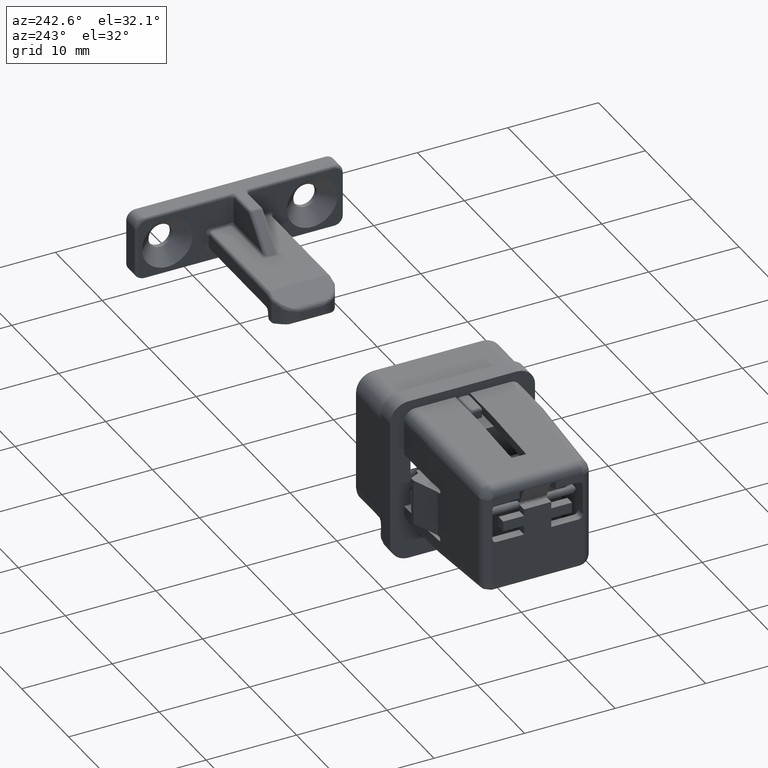
[diagram: clean part render]
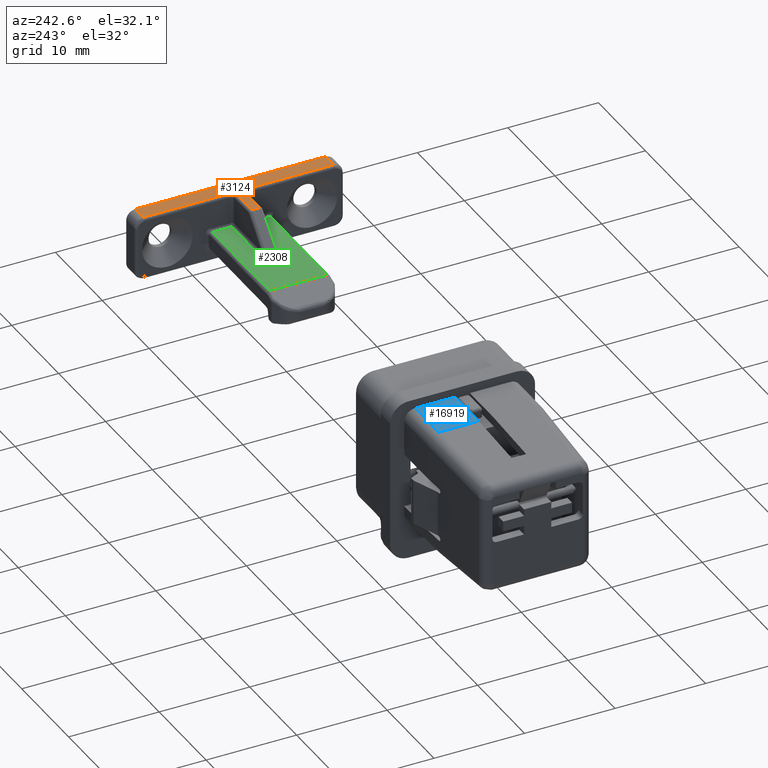
[diagram: same view with three faces highlighted in distinct colors, each labeled with its STEP entity id]
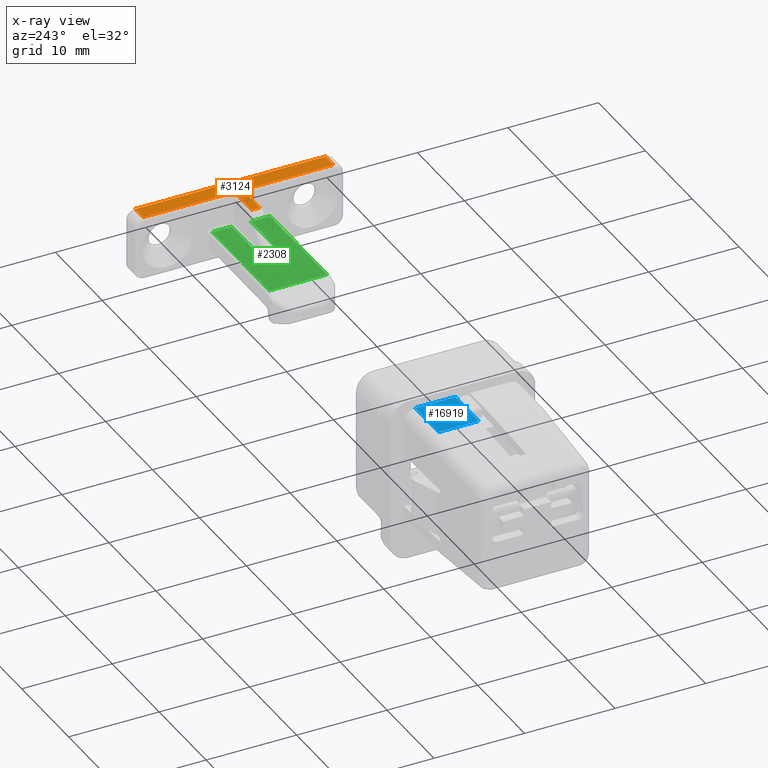
[diagram: x-ray of the same camera — body ghosted, the three highlighted faces saturated]
A machine part, auxiliary view with three faces highlighted in distinct colors.
The next image is the same camera in x-ray (body ghosted, the three faces saturated) — at least one of them is partly hidden behind the body in this view.
Their STEP definitions:

[orange] entity #3124 — the highlighted face is a freeform B-spline surface patch.
#699=CARTESIAN_POINT('',(40.299999999999969,-10.500000000000000,3.500000000000000));
#700=VERTEX_POINT('',#699);
#701=CARTESIAN_POINT('',(42.0,-10.500000000000000,3.500000000000000));
#702=VERTEX_POINT('',#701);
#703=CARTESIAN_POINT('',(40.299999999999969,-10.500000000000000,3.500000000000000));
#704=CARTESIAN_POINT('',(42.0,-10.500000000000000,3.500000000000000));
#705=QUASI_UNIFORM_CURVE('',1,(#703,#704),.UNSPECIFIED.,.F.,.U.);
#706=EDGE_CURVE('',#700,#702,#705,.T.);
#797=CARTESIAN_POINT('',(42.0,10.500000000000000,3.500000000000000));
#798=VERTEX_POINT('',#797);
#812=CARTESIAN_POINT('',(42.0,-10.500000000000000,3.500000000000000));
#813=CARTESIAN_POINT('',(42.0,10.500000000000000,3.500000000000000));
#814=QUASI_UNIFORM_CURVE('',1,(#812,#813),.UNSPECIFIED.,.F.,.U.);
#815=EDGE_CURVE('',#702,#798,#814,.T.);
#1270=CARTESIAN_POINT('',(39.700000000000003,-0.450000000000000,3.500000000000000));
#1271=VERTEX_POINT('',#1270);
#1272=CARTESIAN_POINT('',(40.299999999999997,-1.050000000000000,3.500000000000000));
#1273=VERTEX_POINT('',#1272);
#1274=CARTESIAN_POINT('',(39.700000000000003,-0.450000000000000,3.500000000000000));
#1275=CARTESIAN_POINT('',(40.299999999999997,-0.450000000000000,3.500000000000000));
#1276=CARTESIAN_POINT('',(40.299999999999997,-1.050000000000000,3.500000000000000));
#1284=(BOUNDED_CURVE()B_SPLINE_CURVE(2,(#1274,#1275,#1276),.UNSPECIFIED.,.F.,.U.)CURVE()GEOMETRIC_REPRESENTATION_ITEM()QUASI_UNIFORM_CURVE()RATIONAL_B_SPLINE_CURVE((1.0,0.707106781186547,1.0))REPRESENTATION_ITEM(''));
#1285=EDGE_CURVE('',#1271,#1273,#1284,.T.);
#1486=CARTESIAN_POINT('',(36.624264068711909,-0.449999999999951,3.499999999999945));
#1487=VERTEX_POINT('',#1486);
#1503=CARTESIAN_POINT('',(36.624264068711909,-0.449999999999951,3.499999999999945));
#1504=CARTESIAN_POINT('',(39.700000000000003,-0.450000000000000,3.500000000000000));
#1505=QUASI_UNIFORM_CURVE('',1,(#1503,#1504),.UNSPECIFIED.,.F.,.U.);
#1506=EDGE_CURVE('',#1487,#1271,#1505,.T.);
#1904=CARTESIAN_POINT('',(36.624264068711909,0.449999999999951,3.499999999999945));
#1905=VERTEX_POINT('',#1904);
#1992=CARTESIAN_POINT('',(39.700000000000003,0.450000000000000,3.500000000000000));
#1993=VERTEX_POINT('',#1992);
#2009=CARTESIAN_POINT('',(39.700000000000003,0.450000000000000,3.500000000000000));
#2010=CARTESIAN_POINT('',(36.624264068711909,0.449999999999951,3.499999999999945));
#2011=QUASI_UNIFORM_CURVE('',1,(#2009,#2010),.UNSPECIFIED.,.F.,.U.);
#2012=EDGE_CURVE('',#1993,#1905,#2011,.T.);
#2073=CARTESIAN_POINT('',(40.299999999999997,1.050000000000000,3.500000000000000));
#2074=VERTEX_POINT('',#2073);
#2075=CARTESIAN_POINT('',(40.299999999999997,1.050000000000000,3.500000000000000));
#2076=CARTESIAN_POINT('',(40.299999999999997,0.450000000000000,3.500000000000000));
#2077=CARTESIAN_POINT('',(39.700000000000003,0.450000000000000,3.500000000000000));
#2085=(BOUNDED_CURVE()B_SPLINE_CURVE(2,(#2075,#2076,#2077),.UNSPECIFIED.,.F.,.U.)CURVE()GEOMETRIC_REPRESENTATION_ITEM()QUASI_UNIFORM_CURVE()RATIONAL_B_SPLINE_CURVE((1.0,0.707106781186547,1.0))REPRESENTATION_ITEM(''));
#2086=EDGE_CURVE('',#2074,#1993,#2085,.T.);
#2440=CARTESIAN_POINT('',(36.624264068711909,0.449999999999951,3.499999999999945));
#2441=CARTESIAN_POINT('',(36.624264068711909,-0.449999999999951,3.499999999999945));
#2442=QUASI_UNIFORM_CURVE('',1,(#2440,#2441),.UNSPECIFIED.,.F.,.U.);
#2443=EDGE_CURVE('',#1905,#1487,#2442,.T.);
#2535=CARTESIAN_POINT('',(40.299999999999969,10.500000000000000,3.500000000000000));
#2536=VERTEX_POINT('',#2535);
#2655=CARTESIAN_POINT('',(40.299999999999997,-1.050000000000000,3.500000000000000));
#2656=CARTESIAN_POINT('',(40.299999999999969,-10.500000000000000,3.500000000000000));
#2657=QUASI_UNIFORM_CURVE('',1,(#2655,#2656),.UNSPECIFIED.,.F.,.U.);
#2658=EDGE_CURVE('',#1273,#700,#2657,.T.);
#3094=CARTESIAN_POINT('',(40.299999999999969,10.500000000000000,3.500000000000000));
#3095=CARTESIAN_POINT('',(42.0,10.500000000000000,3.500000000000000));
#3096=QUASI_UNIFORM_CURVE('',1,(#3094,#3095),.UNSPECIFIED.,.F.,.U.);
#3097=EDGE_CURVE('',#2536,#798,#3096,.T.);
#3103=CARTESIAN_POINT('',(42.268517999348617,-11.548949959297930,3.500000000000000));
#3104=CARTESIAN_POINT('',(36.355745925174823,-11.548949959297930,3.500000000000000));
#3105=CARTESIAN_POINT('',(42.268517999348617,11.548950522561819,3.500000000000000));
#3106=CARTESIAN_POINT('',(36.355745925174823,11.548950522561819,3.500000000000000));
#3107=B_SPLINE_SURFACE_WITH_KNOTS('',1,1,((#3103,#3105),(#3104,#3106)),.UNSPECIFIED.,.F.,.F.,.U.,(2,2),(2,2),(0.0,5.912772074173807),(0.0,23.097900481859750),.UNSPECIFIED.);
#3108=ORIENTED_EDGE('',*,*,#1506,.T.);
#3109=ORIENTED_EDGE('',*,*,#1285,.T.);
#3110=ORIENTED_EDGE('',*,*,#2658,.T.);
#3111=ORIENTED_EDGE('',*,*,#706,.T.);
#3112=ORIENTED_EDGE('',*,*,#815,.T.);
#3113=ORIENTED_EDGE('',*,*,#3097,.F.);
#3114=CARTESIAN_POINT('',(40.299999999999969,10.500000000000000,3.500000000000000));
#3115=CARTESIAN_POINT('',(40.299999999999997,1.050000000000000,3.500000000000000));
#3116=QUASI_UNIFORM_CURVE('',1,(#3114,#3115),.UNSPECIFIED.,.F.,.U.);
#3117=EDGE_CURVE('',#2536,#2074,#3116,.T.);
#3118=ORIENTED_EDGE('',*,*,#3117,.T.);
#3119=ORIENTED_EDGE('',*,*,#2086,.T.);
#3120=ORIENTED_EDGE('',*,*,#2012,.T.);
#3121=ORIENTED_EDGE('',*,*,#2443,.T.);
#3122=EDGE_LOOP('',(#3108,#3109,#3110,#3111,#3112,#3113,#3118,#3119,#3120,#3121));
#3123=FACE_OUTER_BOUND('',#3122,.T.);
#3124=ADVANCED_FACE('',(#3123),#3107,.F.);

[blue] entity #16919 — the highlighted face is a freeform B-spline surface patch.
#16212=CARTESIAN_POINT('',(-12.499976312170720,5.250000000000000,6.499999046325630));
#16213=VERTEX_POINT('',#16212);
#16229=CARTESIAN_POINT('',(-7.500000000000000,5.250000000000000,6.499999046325681));
#16230=VERTEX_POINT('',#16229);
#16231=CARTESIAN_POINT('',(-7.500000000000000,5.250000000000000,6.499999046325681));
#16232=CARTESIAN_POINT('',(-12.499976312170720,5.250000000000000,6.499999046325630));
#16233=QUASI_UNIFORM_CURVE('',1,(#16231,#16232),.UNSPECIFIED.,.F.,.U.);
#16234=EDGE_CURVE('',#16230,#16213,#16233,.T.);
#16795=CARTESIAN_POINT('',(-12.499976312170700,0.799999237060540,6.499999046325630));
#16796=VERTEX_POINT('',#16795);
#16802=CARTESIAN_POINT('',(-12.499976312170720,5.250000000000000,6.499999046325630));
#16803=CARTESIAN_POINT('',(-12.499976312170700,0.799999237060540,6.499999046325630));
#16804=QUASI_UNIFORM_CURVE('',1,(#16802,#16803),.UNSPECIFIED.,.F.,.U.);
#16805=EDGE_CURVE('',#16213,#16796,#16804,.T.);
#16898=CARTESIAN_POINT('',(-12.749725119272730,0.577721707576679,6.499999046325620));
#16899=CARTESIAN_POINT('',(-12.749725119272730,5.472277648842184,6.499999046325620));
#16900=CARTESIAN_POINT('',(-7.250251058788182,0.577721707576679,6.499999046325620));
#16901=CARTESIAN_POINT('',(-7.250251058788182,5.472277648842184,6.499999046325620));
#16902=B_SPLINE_SURFACE_WITH_KNOTS('',1,1,((#16898,#16900),(#16899,#16901)),.UNSPECIFIED.,.F.,.F.,.U.,(2,2),(2,2),(0.0,4.894555941265505),(0.0,5.499474060484543),.UNSPECIFIED.);
#16903=ORIENTED_EDGE('',*,*,#16805,.T.);
#16904=CARTESIAN_POINT('',(-7.500000000000000,0.799999237060540,6.499999046325590));
#16905=VERTEX_POINT('',#16904);
#16906=CARTESIAN_POINT('',(-7.500000000000000,0.799999237060540,6.499999046325590));
#16907=CARTESIAN_POINT('',(-12.499976312170700,0.799999237060540,6.499999046325630));
#16908=QUASI_UNIFORM_CURVE('',1,(#16906,#16907),.UNSPECIFIED.,.F.,.U.);
#16909=EDGE_CURVE('',#16905,#16796,#16908,.T.);
#16910=ORIENTED_EDGE('',*,*,#16909,.F.);
#16911=CARTESIAN_POINT('',(-7.500000000000000,0.799999237060540,6.499999046325590));
#16912=CARTESIAN_POINT('',(-7.500000000000000,5.250000000000000,6.499999046325681));
#16913=QUASI_UNIFORM_CURVE('',1,(#16911,#16912),.UNSPECIFIED.,.F.,.U.);
#16914=EDGE_CURVE('',#16905,#16230,#16913,.T.);
#16915=ORIENTED_EDGE('',*,*,#16914,.T.);
#16916=ORIENTED_EDGE('',*,*,#16234,.T.);
#16917=EDGE_LOOP('',(#16903,#16910,#16915,#16916));
#16918=FACE_OUTER_BOUND('',#16917,.T.);
#16919=ADVANCED_FACE('',(#16918),#16902,.F.);

[green] entity #2308 — the highlighted face is a freeform B-spline surface patch.
#854=CARTESIAN_POINT('',(39.700000000000003,-1.050000000000000,0.0));
#855=VERTEX_POINT('',#854);
#869=CARTESIAN_POINT('',(39.700000000000003,-3.200000000000000,0.0));
#870=VERTEX_POINT('',#869);
#871=CARTESIAN_POINT('',(39.700000000000003,-3.200000000000000,0.0));
#872=CARTESIAN_POINT('',(39.700000000000003,-1.050000000000000,0.0));
#873=QUASI_UNIFORM_CURVE('',1,(#871,#872),.UNSPECIFIED.,.F.,.U.);
#874=EDGE_CURVE('',#870,#855,#873,.T.);
#1118=CARTESIAN_POINT('',(33.724264068711868,-1.050000000000000,0.0));
#1119=VERTEX_POINT('',#1118);
#1133=CARTESIAN_POINT('',(39.700000000000003,-1.050000000000000,0.0));
#1134=CARTESIAN_POINT('',(33.724264068711868,-1.050000000000000,0.0));
#1135=QUASI_UNIFORM_CURVE('',1,(#1133,#1134),.UNSPECIFIED.,.F.,.U.);
#1136=EDGE_CURVE('',#855,#1119,#1135,.T.);
#1377=CARTESIAN_POINT('',(32.875735931288013,-0.450000000000000,0.0));
#1378=VERTEX_POINT('',#1377);
#1392=CARTESIAN_POINT('',(32.875735931288013,-0.450000000000000,-4.878910E-016));
#1393=CARTESIAN_POINT('',(32.875735931288020,-1.050000000000000,-4.878910E-016));
#1394=CARTESIAN_POINT('',(33.724264068711868,-1.050000000000000,-4.878910E-016));
#1402=(BOUNDED_CURVE()B_SPLINE_CURVE(2,(#1392,#1393,#1394),.UNSPECIFIED.,.F.,.U.)CURVE()GEOMETRIC_REPRESENTATION_ITEM()QUASI_UNIFORM_CURVE()RATIONAL_B_SPLINE_CURVE((1.0,0.707106781186547,1.0))REPRESENTATION_ITEM(''));
#1403=EDGE_CURVE('',#1378,#1119,#1402,.T.);
#1566=CARTESIAN_POINT('',(32.875735931288013,0.449999999999951,0.0));
#1567=VERTEX_POINT('',#1566);
#1581=CARTESIAN_POINT('',(32.875735931288013,-0.450000000000000,0.0));
#1582=CARTESIAN_POINT('',(32.875735931288013,0.449999999999951,0.0));
#1583=QUASI_UNIFORM_CURVE('',1,(#1581,#1582),.UNSPECIFIED.,.F.,.U.);
#1584=EDGE_CURVE('',#1378,#1567,#1583,.T.);
#1695=CARTESIAN_POINT('',(33.724264068711868,1.050000000000000,0.0));
#1696=VERTEX_POINT('',#1695);
#1710=CARTESIAN_POINT('',(33.724264068711868,1.050000000000000,0.0));
#1711=CARTESIAN_POINT('',(32.875735931288013,1.049999999999951,-5.421011E-017));
#1712=CARTESIAN_POINT('',(32.875735931288013,0.449999999999951,-5.421011E-017));
#1720=(BOUNDED_CURVE()B_SPLINE_CURVE(2,(#1710,#1711,#1712),.UNSPECIFIED.,.F.,.U.)CURVE()GEOMETRIC_REPRESENTATION_ITEM()QUASI_UNIFORM_CURVE()RATIONAL_B_SPLINE_CURVE((1.0,0.707106781186547,1.0))REPRESENTATION_ITEM(''));
#1721=EDGE_CURVE('',#1696,#1567,#1720,.T.);
#1796=CARTESIAN_POINT('',(39.700000000000003,1.050000000000000,0.0));
#1797=VERTEX_POINT('',#1796);
#1811=CARTESIAN_POINT('',(33.724264068711868,1.050000000000000,0.0));
#1812=CARTESIAN_POINT('',(39.700000000000003,1.050000000000000,0.0));
#1813=QUASI_UNIFORM_CURVE('',1,(#1811,#1812),.UNSPECIFIED.,.F.,.U.);
#1814=EDGE_CURVE('',#1696,#1797,#1813,.T.);
#1857=CARTESIAN_POINT('',(39.700000000000003,3.200000000000090,0.0));
#1858=VERTEX_POINT('',#1857);
#1872=CARTESIAN_POINT('',(39.700000000000003,1.050000000000000,0.0));
#1873=CARTESIAN_POINT('',(39.700000000000003,3.200000000000090,0.0));
#1874=QUASI_UNIFORM_CURVE('',1,(#1872,#1873),.UNSPECIFIED.,.F.,.U.);
#1875=EDGE_CURVE('',#1797,#1858,#1874,.T.);
#2275=CARTESIAN_POINT('',(26.941725052339731,-3.519679987595564,0.0));
#2276=CARTESIAN_POINT('',(40.306958571634482,-3.519679987595564,0.0));
#2277=CARTESIAN_POINT('',(26.941725052339731,3.519680159257031,0.0));
#2278=CARTESIAN_POINT('',(40.306958571634482,3.519680159257031,0.0));
#2279=B_SPLINE_SURFACE_WITH_KNOTS('',1,1,((#2275,#2277),(#2276,#2278)),.UNSPECIFIED.,.F.,.F.,.U.,(2,2),(2,2),(0.0,13.365233519294749),(0.0,7.039360146852594),.UNSPECIFIED.);
#2280=CARTESIAN_POINT('',(27.548683298050499,3.200000000000090,0.0));
#2281=VERTEX_POINT('',#2280);
#2282=CARTESIAN_POINT('',(39.700000000000003,3.200000000000090,0.0));
#2283=CARTESIAN_POINT('',(27.548683298050499,3.200000000000090,0.0));
#2284=QUASI_UNIFORM_CURVE('',1,(#2282,#2283),.UNSPECIFIED.,.F.,.U.);
#2285=EDGE_CURVE('',#1858,#2281,#2284,.T.);
#2286=ORIENTED_EDGE('',*,*,#2285,.T.);
#2287=CARTESIAN_POINT('',(27.548683298050499,-3.200000000000000,0.0));
#2288=VERTEX_POINT('',#2287);
#2289=CARTESIAN_POINT('',(27.548683298050499,3.200000000000090,0.0));
#2290=CARTESIAN_POINT('',(27.548683298050499,-3.200000000000000,0.0));
#2291=QUASI_UNIFORM_CURVE('',1,(#2289,#2290),.UNSPECIFIED.,.F.,.U.);
#2292=EDGE_CURVE('',#2281,#2288,#2291,.T.);
#2293=ORIENTED_EDGE('',*,*,#2292,.T.);
#2294=CARTESIAN_POINT('',(27.548683298050499,-3.200000000000000,0.0));
#2295=CARTESIAN_POINT('',(39.700000000000003,-3.200000000000000,0.0));
#2296=QUASI_UNIFORM_CURVE('',1,(#2294,#2295),.UNSPECIFIED.,.F.,.U.);
#2297=EDGE_CURVE('',#2288,#870,#2296,.T.);
#2298=ORIENTED_EDGE('',*,*,#2297,.T.);
#2299=ORIENTED_EDGE('',*,*,#874,.T.);
#2300=ORIENTED_EDGE('',*,*,#1136,.T.);
#2301=ORIENTED_EDGE('',*,*,#1403,.F.);
#2302=ORIENTED_EDGE('',*,*,#1584,.T.);
#2303=ORIENTED_EDGE('',*,*,#1721,.F.);
#2304=ORIENTED_EDGE('',*,*,#1814,.T.);
#2305=ORIENTED_EDGE('',*,*,#1875,.T.);
#2306=EDGE_LOOP('',(#2286,#2293,#2298,#2299,#2300,#2301,#2302,#2303,#2304,#2305));
#2307=FACE_OUTER_BOUND('',#2306,.T.);
#2308=ADVANCED_FACE('',(#2307),#2279,.T.);